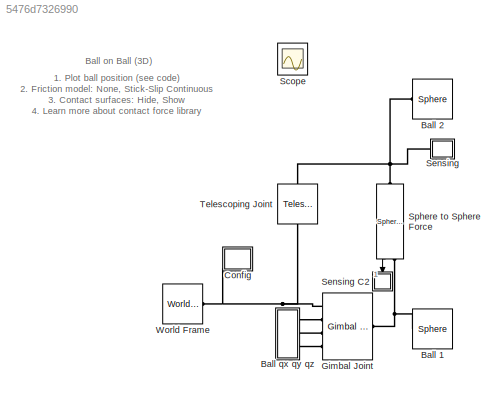
MODEL slx_5476d7326990
KIND model
CONFIG AbsTol = 1e-5
CONFIG EnableMultiTasking = on
CONFIG FixedStep = auto
CONFIG MaxStep = 5e-2
CONFIG MinStep = auto
CONFIG RelTol = 1e-4
CONFIG SampleTimeConstraint = Unconstrained
CONFIG SolverName = ode23t
CONFIG StartFcn = tic;
CONFIG StartTime = 0.0
CONFIG StopFcn = Elapsed_Sim_Time = toc;\ndisp(['Elapsed Sim Time = ' num2str(Elapsed_Sim_Time)]);\n
CONFIG StopTime = 40
WORKSPACE source: MATLAB code (in-file)
WORKSPACE code: ball1.rad = 0.4;
WORKSPACE code: ball1.input.filtconst = 0.4;
WORKSPACE code: ball1.input.period = 2;
WORKSPACE code: ball2.rad = 0.2;
WORKSPACE code: ball1.input.mag = 90;
WORKSPACE code: ball1.input.filtconst = 0.2;
WORKSPACE code: ball1.input.period = 2;
WORKSPACE code: ball1.input.x = [0 1 0 -1 0 0 0  0 0 0 0  0 0 0    0    0   0    0    0];
WORKSPACE code: ball1.input.y = [0 0 0  0 0 1 0 -1 0 0 0  0 0 0    1    0   -1   0    0];
WORKSPACE code: ball1.input.z = [0 0 0  0 0 0 0  0 0 1 0 -1 0 0.5 0.5 0.5 0.5 0.5 0];
BLOCK [Reference] Ball 1  REF=Parts_Lib/Sphere
  Ports = [0, 0, 0, 0, 0, 1]
  SourceBlock = Parts_Lib/Sphere
  SourceType = Sphere with Markings
  Tag = CustomStyle
BLOCK [Reference] Ball 2  REF=Parts_Lib/Sphere
  Ports = [0, 0, 0, 0, 0, 1]
  SourceBlock = Parts_Lib/Sphere
  SourceType = Sphere with Markings
  Tag = CustomStyle
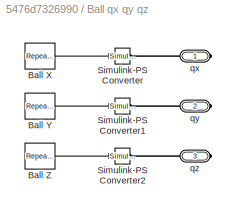
BLOCK [SubSystem] Ball qx qy qz
  Ports = [0, 0, 0, 0, 0, 0, 3]
  RequestExecContextInheritance = off
BLOCK [Reference] Ball qx qy qz/Ball X  REF=simulink/Sources/Repeating
Sequence
Stair
  Ports = [0, 1]
  SourceBlock = simulink/Sources/Repeating\nSequence\nStair
  SourceProductBaseCode = SL
  SourceType = Repeating Sequence Stair
BLOCK [Reference] Ball qx qy qz/Ball Y  REF=simulink/Sources/Repeating
Sequence
Stair
  Ports = [0, 1]
  SourceBlock = simulink/Sources/Repeating\nSequence\nStair
  SourceProductBaseCode = SL
  SourceType = Repeating Sequence Stair
BLOCK [Reference] Ball qx qy qz/Ball Z  REF=simulink/Sources/Repeating
Sequence
Stair
  Ports = [0, 1]
  SourceBlock = simulink/Sources/Repeating\nSequence\nStair
  SourceProductBaseCode = SL
  SourceType = Repeating Sequence Stair
BLOCK [Reference] Ball qx qy qz/Simulink-PS Converter  REF=nesl_utility/Simulink-PS
Converter
  Ports = [1, 0, 0, 0, 0, 0, 1]
  SourceBlock = nesl_utility/Simulink-PS\nConverter
  SourceProductBaseCode = PW,SS
  SourceType = Simulink-PS\nConverter
BLOCK [Reference] Ball qx qy qz/Simulink-PS Converter1  REF=nesl_utility/Simulink-PS
Converter
  Ports = [1, 0, 0, 0, 0, 0, 1]
  SourceBlock = nesl_utility/Simulink-PS\nConverter
  SourceProductBaseCode = PW,SS
  SourceType = Simulink-PS\nConverter
BLOCK [Reference] Ball qx qy qz/Simulink-PS Converter2  REF=nesl_utility/Simulink-PS
Converter
  Ports = [1, 0, 0, 0, 0, 0, 1]
  SourceBlock = nesl_utility/Simulink-PS\nConverter
  SourceProductBaseCode = PW,SS
  SourceType = Simulink-PS\nConverter
BLOCK [PMIOPort] Ball qx qy qz/qx
  Side = Right
BLOCK [PMIOPort] Ball qx qy qz/qy
  Port = 2
  Side = Right
BLOCK [PMIOPort] Ball qx qy qz/qz
  Port = 3
  Side = Right
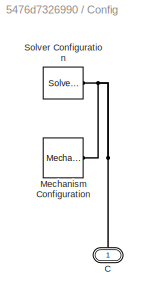
BLOCK [SubSystem] Config
  NameLocation = right
  Ports = [0, 0, 0, 0, 0, 1]
  RequestExecContextInheritance = off
BLOCK [PMIOPort] Config/C
  NameLocation = right
  Side = Left
BLOCK [Reference] Config/Mechanism Configuration  REF=sm_lib/Utilities/Mechanism
Configuration
  Ports = [0, 0, 0, 0, 0, 0, 1]
  SourceBlock = sm_lib/Utilities/Mechanism\nConfiguration
  SourceProductBaseCode = MS
  SourceType = Mechanism\nConfiguration
BLOCK [Reference] Config/Solver Configuration  REF=nesl_utility/Solver
Configuration
  Ports = [0, 0, 0, 0, 0, 0, 1]
  SourceBlock = nesl_utility/Solver\nConfiguration
  SourceProductBaseCode = PW,SS
  SourceType = Solver\nConfiguration
BLOCK [Reference] Gimbal Joint  REF=sm_lib/Joints/Gimbal Joint
  Ports = [0, 0, 0, 0, 0, 4, 1]
  SourceBlock = sm_lib/Joints/Gimbal Joint
  SourceProductBaseCode = MS
  SourceType = Gimbal Joint
BLOCK [Scope] Scope
  Floating = off
  IOType = viewer
  NumInputPorts = 1
  Ports = []
  ScopeSpecificationString = C++SS(StrPVP('Location','[610, 115, 1102, 652]'),StrPVP('Open','off'),MxPVP('AxesTitles',54,'struct(''axes1'',''%<SignalLabel>'')'),MxPVP('ScopeGraphics',57,'struct(''FigureColor'',''[0.5 0.5 0.5]'',''AxesColor'',''[0 0 0]'',''AxesTickColor'',''[1 1 1]'',''LineColors'',''[1 1 0;1 0 1;0 1 1;1 0 0;0 1 0;0 0 1]'',''LineStyles'',''-|-|-|-|-|-'',''LineWidths'',''[0.5 0.5 0.5 0.5 0.5 0.5]'',''MarkerStyl...<+304ch>
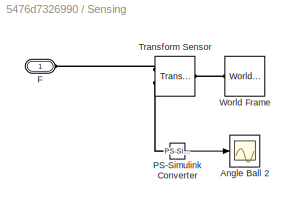
BLOCK [SubSystem] Sensing
  Ports = [0, 0, 0, 0, 0, 1]
  RequestExecContextInheritance = off
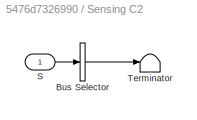
BLOCK [SubSystem] Sensing C2
  NameLocation = left
  Ports = [1]
  RequestExecContextInheritance = off
BLOCK [BusSelector] Sensing C2/Bus Selector
  OutputAsBus = on
  OutputSignals = Penetration
  Ports = [1, 1]
BLOCK [Inport] Sensing C2/S
  NameLocation = top
BLOCK [Terminator] Sensing C2/Terminator
BLOCK [Scope] Sensing/Angle Ball 2
  Floating = off
  NumInputPorts = 1
  Ports = [1]
  ScopeSpecificationString = Simulink.scopes.TimeScopeBlockCfg('CurrentConfiguration', extmgr.ConfigurationSet(extmgr.Configuration('Core','General UI',true),extmgr.Configuration('Core','Source UI',true),extmgr.Configuration('Sources','WiredSimulink',true,'DataLoggingVariableName','ScopeData1','DataLoggingLimitDataPoints',true,'DataLoggingSaveFormat','Array','DataLoggingDecimation','1','DataLoggingDecimateData',true),extmgr.C...<+1636ch>
BLOCK [PMIOPort] Sensing/F
  Side = Left
BLOCK [Reference] Sensing/PS-Simulink Converter  REF=nesl_utility/PS-Simulink
Converter
  Ports = [0, 1, 0, 0, 0, 1]
  SourceBlock = nesl_utility/PS-Simulink\nConverter
  SourceProductBaseCode = PW,SS
  SourceType = PS-Simulink\nConverter
BLOCK [Reference] Sensing/Transform Sensor  REF=sm_lib/Frames and
Transforms/Transform
Sensor
  Ports = [0, 0, 0, 0, 0, 1, 2]
  SourceBlock = sm_lib/Frames and\nTransforms/Transform\nSensor
  SourceProductBaseCode = MS
  SourceType = Transform\nSensor
BLOCK [Reference] Sensing/World Frame  REF=sm_lib/Frames and
Transforms/World Frame
  NameLocation = top
  Ports = [0, 0, 0, 0, 0, 0, 1]
  SourceBlock = sm_lib/Frames and\nTransforms/World Frame
  SourceProductBaseCode = MS
  SourceType = World Frame
BLOCK [Reference] Sphere to Sphere Force  REF=Contact_Forces_Lib/3D/Sphere to Sphere Force
  NameLocation = right
  Ports = [0, 1, 0, 0, 0, 1, 1]
  SourceBlock = Contact_Forces_Lib/3D/Sphere to Sphere Force
  SourceProductName = Simscape Multibody Contact Forces Library
  SourceType = Sphere to Sphere Force
BLOCK [Reference] Telescoping Joint  REF=sm_lib/Joints/Telescoping
Joint
  NameLocation = left
  Ports = [0, 0, 0, 0, 0, 1, 1]
  SourceBlock = sm_lib/Joints/Telescoping\nJoint
  SourceProductBaseCode = MS
  SourceType = Telescoping\nJoint
BLOCK [Reference] World Frame  REF=sm_lib/Frames and
Transforms/World Frame
  Ports = [0, 0, 0, 0, 0, 0, 1]
  SourceBlock = sm_lib/Frames and\nTransforms/World Frame
  SourceProductBaseCode = MS
  SourceType = World Frame
ANNOTATION (root): 1. Plot ball position ( see code ) 2. Friction model: None , Stick-Slip Continuous 3. Contact surfaces: Hide , Show 4. Learn more about contact force library
ANNOTATION (root): Ball on Ball (3D)
LINE Ball qx qy qz/Ball X:1 -> Ball qx qy qz/Simulink-PS Converter:1
LINE Ball qx qy qz/Ball Y:1 -> Ball qx qy qz/Simulink-PS Converter1:1
LINE Ball qx qy qz/Ball Z:1 -> Ball qx qy qz/Simulink-PS Converter2:1
LINE Sensing C2/Bus Selector:1 -> Sensing C2/Terminator:1
LINE Sensing C2/S:1 -> Sensing C2/Bus Selector:1
LINE Sensing/PS-Simulink Converter:1 -> Sensing/Angle Ball 2:1
LINE Sphere to Sphere Force:1 -> Sensing C2:1
PNET net1: Ball 1:LConn1 -- Gimbal Joint:RConn1 -- Sphere to Sphere Force:RConn1
PNET net2: Ball 2:LConn1 -- Sensing:LConn1 -- Sphere to Sphere Force:LConn1 -- Telescoping Joint:LConn1
PLINE Ball qx qy qz/Simulink-PS Converter1:RConn1 -- Ball qx qy qz/qy:RConn1
PLINE Ball qx qy qz/Simulink-PS Converter2:RConn1 -- Ball qx qy qz/qz:RConn1
PLINE Ball qx qy qz/Simulink-PS Converter:RConn1 -- Ball qx qy qz/qx:RConn1
PLINE Ball qx qy qz:RConn1 -- Gimbal Joint:LConn2
PLINE Ball qx qy qz:RConn2 -- Gimbal Joint:LConn3
PLINE Ball qx qy qz:RConn3 -- Gimbal Joint:LConn4
PNET net3: Config/C:RConn1 -- Config/Mechanism Configuration:RConn1 -- Config/Solver Configuration:RConn1
PNET net4: Config:LConn1 -- Gimbal Joint:LConn1 -- Telescoping Joint:RConn1 -- World Frame:RConn1
PLINE Sensing/F:RConn1 -- Sensing/Transform Sensor:RConn1
PLINE Sensing/PS-Simulink Converter:LConn1 -- Sensing/Transform Sensor:RConn2
PLINE Sensing/Transform Sensor:LConn1 -- Sensing/World Frame:RConn1
note: PNET lines group multi-terminal physical nets as a canonical sorted terminal list (undirected conserving connections); 2-terminal nets keep the pairwise PLINE form
